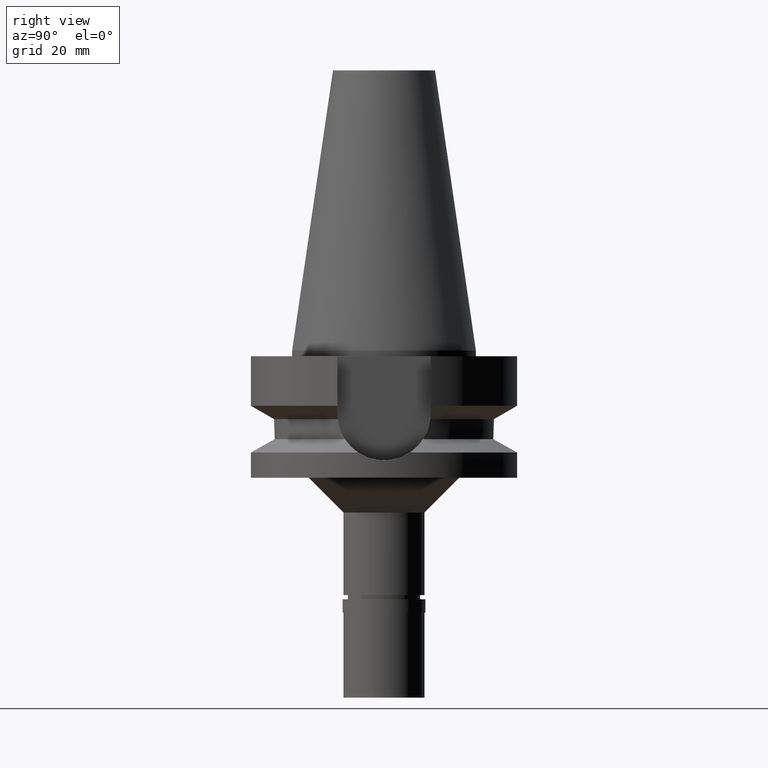
[diagram: clean part render]
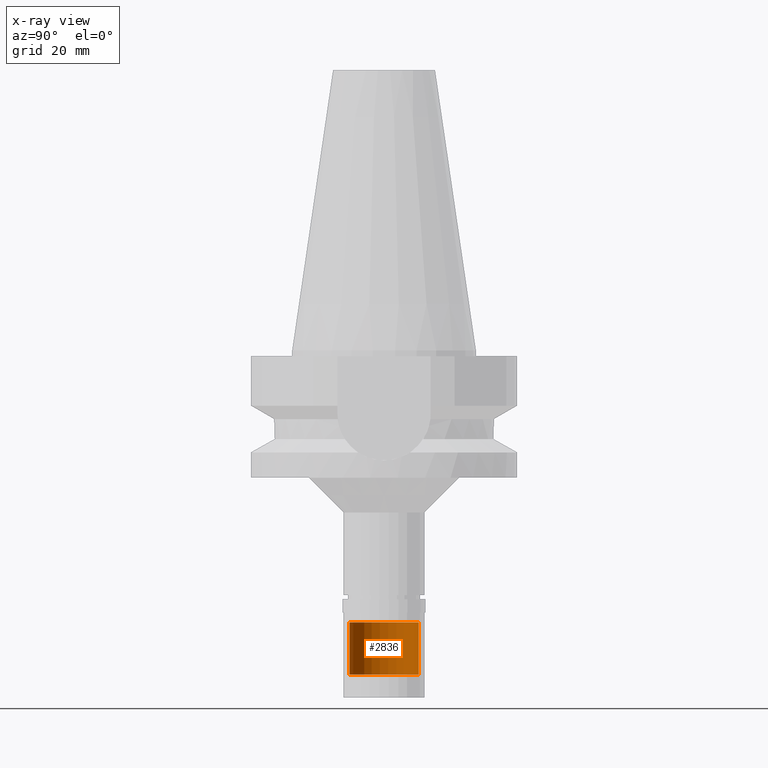
[diagram: x-ray — body ghosted, one internal face saturated and labeled with its STEP entity id]
A machine part, right view, then the same camera in x-ray: the body is ghosted and one INTERNAL B-rep face — a face not visible from any outside direction — is saturated and labeled: STEP entity #2836.
In plain terms, the highlighted cylindrical surface (edge-blend (fillet) strip) has radius 6.0018 mm, axis along (0, 0, -1).
Its self-contained STEP definition (entity closure, byte-faithful):
#8 = EDGE_LOOP ( 'NONE', ( #2194, #818, #2622, #813 ) ) ;
#9 = FACE_OUTER_BOUND ( 'NONE', #8, .T. ) ;
#26 = VECTOR ( 'NONE', #228, 1000.000000000000000 ) ;
#94 = CARTESIAN_POINT ( 'NONE',  ( 0.0000000000000000000, -6.001791732784999667, -47.00000000000000000 ) ) ;
#203 = DIRECTION ( 'NONE',  ( 0.0000000000000000000, -1.000000000000000000, 0.0000000000000000000 ) ) ;
#219 = DIRECTION ( 'NONE',  ( 0.0000000000000000000, 0.0000000000000000000, -1.000000000000000000 ) ) ;
#228 = DIRECTION ( 'NONE',  ( 0.0000000000000000000, 0.0000000000000000000, -1.000000000000000000 ) ) ;
#437 = CIRCLE ( 'NONE', #2605, 6.001791732784999667 ) ;
#476 = CARTESIAN_POINT ( 'NONE',  ( 0.0000000000000000000, 6.001791732784999667, -47.00000000000000000 ) ) ;
#788 = DIRECTION ( 'NONE',  ( 0.0000000000000000000, 0.0000000000000000000, -1.000000000000000000 ) ) ;
#813 = ORIENTED_EDGE ( 'NONE', *, *, #1821, .T. ) ;
#818 = ORIENTED_EDGE ( 'NONE', *, *, #2686, .F. ) ;
#890 = CYLINDRICAL_SURFACE ( 'NONE', #1480, 6.001791732784999667 ) ;
#919 = VERTEX_POINT ( 'NONE', #1925 ) ;
#1107 = VERTEX_POINT ( 'NONE', #1317 ) ;
#1163 = VERTEX_POINT ( 'NONE', #94 ) ;
#1317 = CARTESIAN_POINT ( 'NONE',  ( 0.0000000000000000000, -6.001791732784999667, -56.00000000000000000 ) ) ;
#1423 = AXIS2_PLACEMENT_3D ( 'NONE', #2895, #1967, #2880 ) ;
#1480 = AXIS2_PLACEMENT_3D ( 'NONE', #1782, #219, #203 ) ;
#1572 = DIRECTION ( 'NONE',  ( 0.0000000000000000000, -1.000000000000000000, 0.0000000000000000000 ) ) ;
#1695 = VERTEX_POINT ( 'NONE', #2799 ) ;
#1782 = CARTESIAN_POINT ( 'NONE',  ( 0.0000000000000000000, 1.881302412850000052E-14, 53.62000000000000455 ) ) ;
#1791 = DIRECTION ( 'NONE',  ( 0.0000000000000000000, 0.0000000000000000000, -1.000000000000000000 ) ) ;
#1821 = EDGE_CURVE ( 'NONE', #919, #1695, #2248, .T. ) ;
#1925 = CARTESIAN_POINT ( 'NONE',  ( 0.0000000000000000000, 6.001791732784999667, -47.00000000000000000 ) ) ;
#1937 = LINE ( 'NONE', #2819, #2332 ) ;
#1967 = DIRECTION ( 'NONE',  ( 0.0000000000000000000, 0.0000000000000000000, 1.000000000000000000 ) ) ;
#1973 = EDGE_CURVE ( 'NONE', #1695, #1107, #2474, .T. ) ;
#2194 = ORIENTED_EDGE ( 'NONE', *, *, #1973, .T. ) ;
#2248 = LINE ( 'NONE', #476, #26 ) ;
#2264 = CARTESIAN_POINT ( 'NONE',  ( 0.0000000000000000000, 1.881302412850000052E-14, -47.00000000000000000 ) ) ;
#2332 = VECTOR ( 'NONE', #788, 1000.000000000000000 ) ;
#2474 = CIRCLE ( 'NONE', #1423, 6.001791732784999667 ) ;
#2605 = AXIS2_PLACEMENT_3D ( 'NONE', #2264, #1791, #1572 ) ;
#2622 = ORIENTED_EDGE ( 'NONE', *, *, #2854, .T. ) ;
#2686 = EDGE_CURVE ( 'NONE', #1163, #1107, #1937, .T. ) ;
#2799 = CARTESIAN_POINT ( 'NONE',  ( 0.0000000000000000000, 6.001791732784999667, -56.00000000000000000 ) ) ;
#2819 = CARTESIAN_POINT ( 'NONE',  ( 0.0000000000000000000, -6.001791732784999667, -47.00000000000000000 ) ) ;
#2836 = ADVANCED_FACE ( 'NONE', ( #9 ), #890, .T. ) ;
#2854 = EDGE_CURVE ( 'NONE', #1163, #919, #437, .T. ) ;
#2880 = DIRECTION ( 'NONE',  ( 0.0000000000000000000, 1.000000000000000000, 0.0000000000000000000 ) ) ;
#2895 = CARTESIAN_POINT ( 'NONE',  ( 0.0000000000000000000, 1.881302412850000052E-14, -56.00000000000000000 ) ) ;